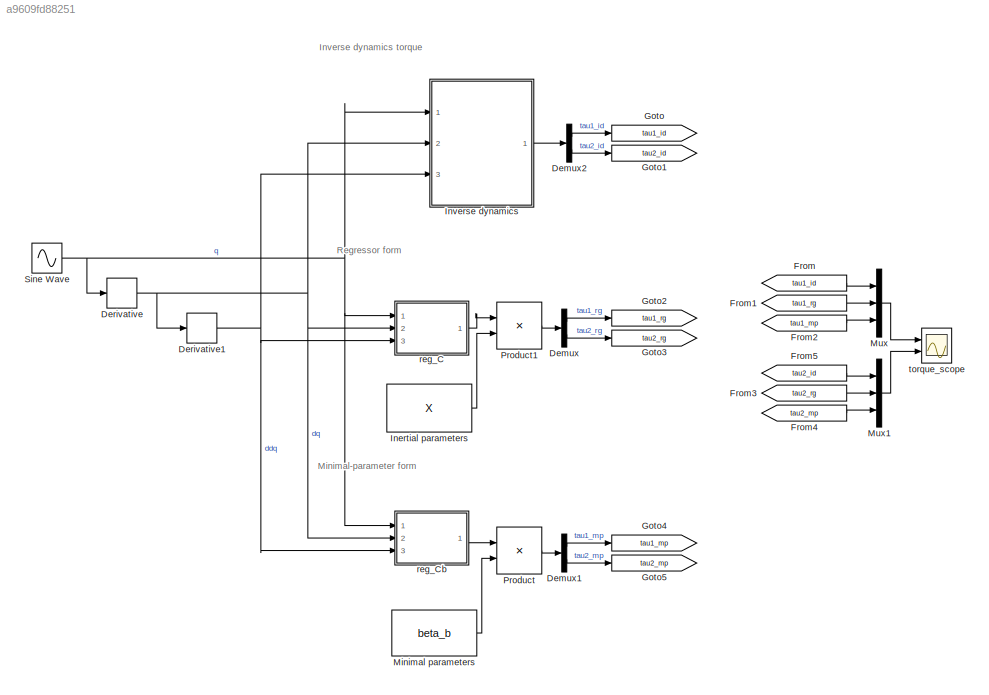
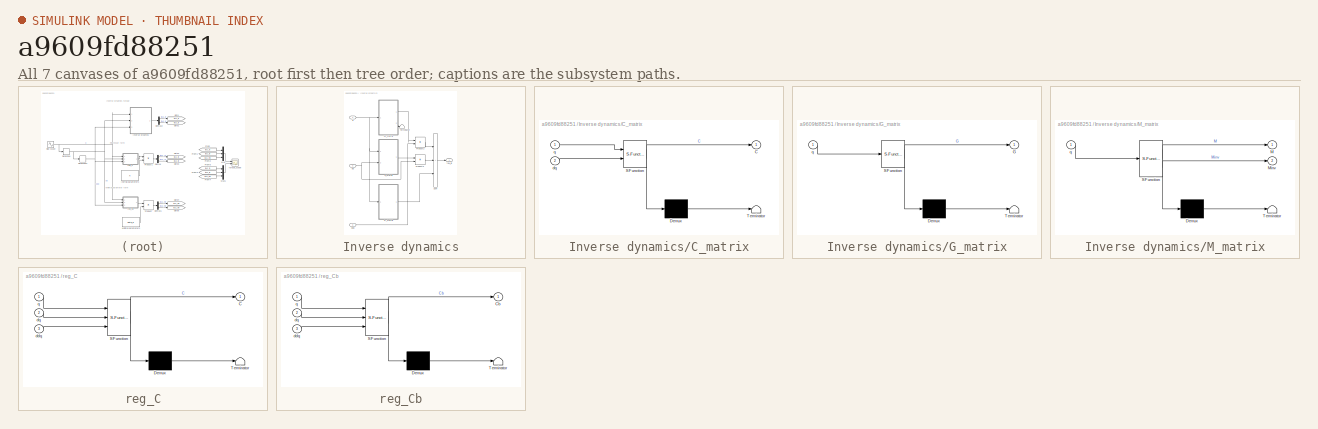
[diagram: thumbnail index - all 7 canvases of the model, root first then tree order]
MODEL slx_a9609fd88251
KIND model
CONFIG AbsTol = auto
CONFIG EnableMultiTasking = off
CONFIG FixedStep = 1E-3
CONFIG MaxStep = auto
CONFIG MinStep = auto
CONFIG RelTol = 1e-3
CONFIG SampleTimeConstraint = Unconstrained
CONFIG Solver = ode4
CONFIG SolverName = ode4
CONFIG StartTime = 0.0
CONFIG StopTime = 10.0
BLOCK [Demux] Demux
  Outputs = 2
  Ports = [1, 2]
BLOCK [Demux] Demux1
  Outputs = 2
  Ports = [1, 2]
BLOCK [Demux] Demux2
  Outputs = 2
  Ports = [1, 2]
BLOCK [Derivative] Derivative
BLOCK [Derivative] Derivative1
BLOCK [From] From
  GotoTag = tau1_id
BLOCK [From] From1
  GotoTag = tau1_rg
BLOCK [From] From2
  GotoTag = tau1_mp
BLOCK [From] From3
  GotoTag = tau2_rg
BLOCK [From] From4
  GotoTag = tau2_mp
BLOCK [From] From5
  GotoTag = tau2_id
BLOCK [Goto] Goto
  GotoTag = tau1_id
BLOCK [Goto] Goto1
  GotoTag = tau2_id
BLOCK [Goto] Goto2
  GotoTag = tau1_rg
BLOCK [Goto] Goto3
  GotoTag = tau2_rg
BLOCK [Goto] Goto4
  GotoTag = tau1_mp
BLOCK [Goto] Goto5
  GotoTag = tau2_mp
BLOCK [Constant] Inertial parameters
  Value = X
BLOCK [SubSystem] Inverse dynamics
  Ports = [3, 1]
  RequestExecContextInheritance = off
BLOCK [SubSystem] Inverse dynamics/C_matrix
  ErrorFcn = Stateflow.Translate.translate
  PermitHierarchicalResolution = ExplicitOnly
  Ports = [2, 1]
  RequestExecContextInheritance = off
  SFBlockType = MATLAB Function
  TreatAsAtomicUnit = on
BLOCK [Demux] Inverse dynamics/C_matrix/ Demux 
  Outputs = 1
  Ports = [1, 1]
BLOCK [S-Function] Inverse dynamics/C_matrix/ SFunction 
  EnableBusSupport = on
  FunctionName = sf_sfun
  Parameters = l1,lc2,m2
  PortCounts = [2 2]
  Ports = [2, 2]
  SFcnIsStateOwnerBlock = off
  SFunctionDeploymentMode = off
  Tag = Stateflow S-Function 3
BLOCK [Terminator] Inverse dynamics/C_matrix/ Terminator 
BLOCK [Outport] Inverse dynamics/C_matrix/C
  VectorParamsAs1DForOutWhenUnconnected = off
BLOCK [Inport] Inverse dynamics/C_matrix/dq
  Port = 2
BLOCK [Inport] Inverse dynamics/C_matrix/q
BLOCK [SubSystem] Inverse dynamics/G_matrix
  ErrorFcn = Stateflow.Translate.translate
  PermitHierarchicalResolution = ExplicitOnly
  Ports = [1, 1]
  RequestExecContextInheritance = off
  SFBlockType = MATLAB Function
  TreatAsAtomicUnit = on
BLOCK [Demux] Inverse dynamics/G_matrix/ Demux 
  Outputs = 1
  Ports = [1, 1]
BLOCK [S-Function] Inverse dynamics/G_matrix/ SFunction 
  EnableBusSupport = on
  FunctionName = sf_sfun
  Parameters = g,l1,lc1,lc2,m1,m2
  PortCounts = [1 2]
  Ports = [1, 2]
  SFcnIsStateOwnerBlock = off
  SFunctionDeploymentMode = off
  Tag = Stateflow S-Function 8
BLOCK [Terminator] Inverse dynamics/G_matrix/ Terminator 
BLOCK [Outport] Inverse dynamics/G_matrix/G
  VectorParamsAs1DForOutWhenUnconnected = off
BLOCK [Inport] Inverse dynamics/G_matrix/q
BLOCK [SubSystem] Inverse dynamics/M_matrix
  ErrorFcn = Stateflow.Translate.translate
  PermitHierarchicalResolution = ExplicitOnly
  Ports = [1, 2]
  RequestExecContextInheritance = off
  SFBlockType = MATLAB Function
  TreatAsAtomicUnit = on
BLOCK [Demux] Inverse dynamics/M_matrix/ Demux 
  Outputs = 1
  Ports = [1, 1]
BLOCK [S-Function] Inverse dynamics/M_matrix/ SFunction 
  EnableBusSupport = on
  FunctionName = sf_sfun
  Parameters = I1zz,I2zz,l1,lc1,lc2,m1,m2
  PortCounts = [1 3]
  Ports = [1, 3]
  SFcnIsStateOwnerBlock = off
  SFunctionDeploymentMode = off
  Tag = Stateflow S-Function 5
BLOCK [Terminator] Inverse dynamics/M_matrix/ Terminator 
BLOCK [Outport] Inverse dynamics/M_matrix/M
  VectorParamsAs1DForOutWhenUnconnected = off
BLOCK [Outport] Inverse dynamics/M_matrix/Minv
  Port = 2
  VectorParamsAs1DForOutWhenUnconnected = off
BLOCK [Inport] Inverse dynamics/M_matrix/q
BLOCK [Product] Inverse dynamics/Product2
  Multiplication = Matrix(*)
  Ports = [2, 1]
BLOCK [Product] Inverse dynamics/Product3
  Multiplication = Matrix(*)
  Ports = [2, 1]
BLOCK [Sum] Inverse dynamics/Sum
  IconShape = rectangular
  Inputs = +++
  Ports = [3, 1]
BLOCK [Terminator] Inverse dynamics/Terminator
BLOCK [Inport] Inverse dynamics/ddq
  Port = 3
BLOCK [Inport] Inverse dynamics/dq
  Port = 2
BLOCK [Inport] Inverse dynamics/q
BLOCK [Outport] Inverse dynamics/tau_id
BLOCK [Constant] Minimal parameters
  Value = beta_b
BLOCK [Mux] Mux
  DisplayOption = bar
  Inputs = 3
  Ports = [3, 1]
BLOCK [Mux] Mux1
  DisplayOption = bar
  Inputs = 3
  Ports = [3, 1]
BLOCK [Product] Product
  Multiplication = Matrix(*)
  Ports = [2, 1]
BLOCK [Product] Product1
  Multiplication = Matrix(*)
  Ports = [2, 1]
BLOCK [Sin] Sine Wave
  Amplitude = [1 1]
  Frequency = 2*pi*(1/2)
  Ports = [0, 1]
  SampleTime = 0
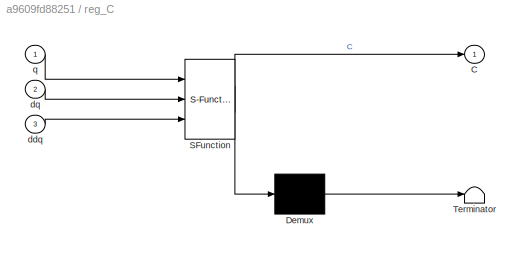
BLOCK [SubSystem] reg_C
  ErrorFcn = Stateflow.Translate.translate
  PermitHierarchicalResolution = ExplicitOnly
  Ports = [3, 1]
  RequestExecContextInheritance = off
  SFBlockType = MATLAB Function
  TreatAsAtomicUnit = on
BLOCK [Demux] reg_C/ Demux 
  Outputs = 1
  Ports = [1, 1]
BLOCK [S-Function] reg_C/ SFunction 
  EnableBusSupport = on
  FunctionName = sf_sfun
  PortCounts = [3 2]
  Ports = [3, 2]
  SFcnIsStateOwnerBlock = off
  SFunctionDeploymentMode = off
  Tag = Stateflow S-Function 6
BLOCK [Terminator] reg_C/ Terminator 
BLOCK [Outport] reg_C/C
BLOCK [Inport] reg_C/ddq
  Port = 3
BLOCK [Inport] reg_C/dq
  Port = 2
BLOCK [Inport] reg_C/q
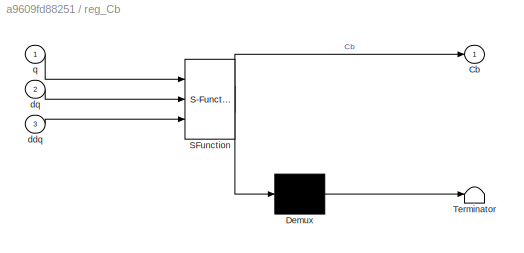
BLOCK [SubSystem] reg_Cb
  ErrorFcn = Stateflow.Translate.translate
  PermitHierarchicalResolution = ExplicitOnly
  Ports = [3, 1]
  RequestExecContextInheritance = off
  SFBlockType = MATLAB Function
  TreatAsAtomicUnit = on
BLOCK [Demux] reg_Cb/ Demux 
  Outputs = 1
  Ports = [1, 1]
BLOCK [S-Function] reg_Cb/ SFunction 
  EnableBusSupport = on
  FunctionName = sf_sfun
  PortCounts = [3 2]
  Ports = [3, 2]
  SFcnIsStateOwnerBlock = off
  SFunctionDeploymentMode = off
  Tag = Stateflow S-Function 1
BLOCK [Terminator] reg_Cb/ Terminator 
BLOCK [Outport] reg_Cb/Cb
BLOCK [Inport] reg_Cb/ddq
  Port = 3
BLOCK [Inport] reg_Cb/dq
  Port = 2
BLOCK [Inport] reg_Cb/q
BLOCK [Scope] torque_scope
  Floating = off
  NumInputPorts = 2
  Ports = [2]
  ScopeSpecificationString = Simulink.scopes.TimeScopeBlockCfg('CurrentConfiguration', extmgr.ConfigurationSet(extmgr.Configuration('Core','General UI',true,'FigureColor',[0 0 0]),extmgr.Configuration('Core','Source UI',true),extmgr.Configuration('Sources','WiredSimulink',true,'DataLoggingVariableName','ScopeData2'),extmgr.Configuration('Visuals','Time Domain',true,'SerializedDisplays',{struct('MinYLimReal','-294.34856','MaxY...<+2900ch>
ANNOTATION (root): Inverse dynamics torque
ANNOTATION (root): Minimal-parameter form
ANNOTATION (root): Regressor form
LINE Demux1:1 -> Goto4:1
LINE Demux1:2 -> Goto5:1
LINE Demux2:1 -> Goto:1
LINE Demux2:2 -> Goto1:1
LINE Demux:1 -> Goto2:1
LINE Demux:2 -> Goto3:1
NET Derivative1:1 -> Inverse dynamics:3, reg_C:3, reg_Cb:3
NET Derivative:1 -> Derivative1:1, Inverse dynamics:2, reg_C:2, reg_Cb:2
LINE From1:1 -> Mux:2
LINE From2:1 -> Mux:3
LINE From3:1 -> Mux1:2
LINE From4:1 -> Mux1:3
LINE From5:1 -> Mux1:1
LINE From:1 -> Mux:1
LINE Inertial parameters:1 -> Product1:2
LINE Inverse dynamics/C_matrix:1 -> Inverse dynamics/Product3:1
LINE Inverse dynamics/G_matrix:1 -> Inverse dynamics/Sum:3
LINE Inverse dynamics/M_matrix:1 -> Inverse dynamics/Product2:1
LINE Inverse dynamics/M_matrix:2 -> Inverse dynamics/Terminator:1
LINE Inverse dynamics/Product2:1 -> Inverse dynamics/Sum:1
LINE Inverse dynamics/Product3:1 -> Inverse dynamics/Sum:2
LINE Inverse dynamics/Sum:1 -> Inverse dynamics/tau_id:1
LINE Inverse dynamics/ddq:1 -> Inverse dynamics/Product2:2
NET Inverse dynamics/dq:1 -> Inverse dynamics/C_matrix:2, Inverse dynamics/Product3:2
NET Inverse dynamics/q:1 -> Inverse dynamics/C_matrix:1, Inverse dynamics/G_matrix:1, Inverse dynamics/M_matrix:1
LINE Inverse dynamics:1 -> Demux2:1
LINE Minimal parameters:1 -> Product:2
LINE Mux1:1 -> torque_scope:2
LINE Mux:1 -> torque_scope:1
LINE Product1:1 -> Demux:1
LINE Product:1 -> Demux1:1
NET Sine Wave:1 -> Derivative:1, Inverse dynamics:1, reg_C:1, reg_Cb:1
LINE reg_C:1 -> Product1:1
LINE reg_Cb:1 -> Product:1
note: NET lines group one-source signal fan-out (src -> all destinations, sorted); 1:1 wires keep LINE
CHART reg_Cb states=1 transitions=1
  STATE_LABEL 'eML_blk_kernel()'
  STATE_LABEL 'SCRIPT:\nfunction Cb = reg_Cb(q,dq,ddq)\n%#codegen\n\n%    This function was generated by the Symbolic Math Toolbox version 8.5.\n%    15-Nov-2022 11:13:43\nddq1 = ddq(1);\nddq2 = ddq(2);\ndq1  = dq(1);\ndq2  = dq(2);\nq1   = q(1);\nq2   = q(2);\n\nt2 = cos(q2);\nt3 = sin(q2);\nt4 = ddq1+ddq2;\nt5 = dq1+dq2;\nt6 = q1+q2;\nt7 = ddq1.*t2;\nt8 = cos(t6);\nt9 = ddq1.*t3;\nt10 = sin(t6);\nt11 = dq1.*dq2.*t3;\nt12 = dq1.*dq2....<+320ch>'
CHART Inverse dynamics/C_matrix states=1 transitions=1
  STATE_LABEL 'eML_blk_kernel()'
  STATE_LABEL 'SCRIPT:\nfunction C = C_matrix(q,dq, l1, lc2, m2)\n%#codegen\n\n%    This function was generated by the Symbolic Math Toolbox version 8.3.\n%    05-Nov-2019 15:18:30\n\ndq1  = dq(1);\ndq2  = dq(2);\nq1   = q(1);\nq2   = q(2);\n\nt2 = sin(q2);\nC = reshape([-dq2.*l1.*lc2.*m2.*t2,dq1.*l1.*lc2.*m2.*t2,-l1.*lc2.*m2.*t2.*(dq1+dq2),0.0],[2,2]);\n'
CHART Inverse dynamics/M_matrix states=1 transitions=1
  STATE_LABEL 'eML_blk_kernel()'
  STATE_LABEL 'SCRIPT:\nfunction [M, Minv] = M_matrix(q, I1zz, I2zz, l1, lc1, lc2, m1, m2)\n%#codegen\n\n%    This function was generated by the Symbolic Math Toolbox version 8.3.\n%    05-Nov-2019 15:18:29\n\nq1   = q(1);\nq2   = q(2);\n\nt2 = cos(q2);\nt3 = lc2.^2;\nt4 = m2.*t3;\nt5 = l1.*lc2.*m2.*t2;\nt6 = I2zz+t4+t5;\nM = reshape([I1zz+t5+t6+l1.^2.*m2+lc1.^2.*m1,t6,t6,I2zz+t4],[2,2]);\nMinv = pinv(M);'
CHART reg_C states=1 transitions=1
  STATE_LABEL 'eML_blk_kernel()'
  STATE_LABEL 'SCRIPT:\nfunction C = reg_C(q,dq,ddq)\n%#codegen\n\n%    This function was generated by the Symbolic Math Toolbox version 8.5.\n%    15-Nov-2022 11:13:43\nddq1 = ddq(1);\nddq2 = ddq(2);\ndq1  = dq(1);\ndq2  = dq(2);\nq1   = q(1);\nq2   = q(2);\n\nt2 = cos(q1);\nt3 = cos(q2);\nt4 = sin(q2);\nt5 = ddq1+ddq2;\nt6 = dq1+dq2;\nt7 = q1+q2;\nt8 = ddq1.*t3;\nt9 = cos(t7);\nt10 = ddq1.*t4;\nt11 = sin(t7);\nt12 = dq1.*dq2.*t4;\nt1...<+457ch>'
CHART Inverse dynamics/G_matrix states=1 transitions=1
  STATE_LABEL 'eML_blk_kernel()'
  STATE_LABEL 'SCRIPT:\nfunction G = G_matrix(q, g, l1, lc1, lc2, m1, m2)\n%#codegen\n\n%    This function was generated by the Symbolic Math Toolbox version 8.3.\n%    05-Nov-2019 15:18:30\n\nq1   = q(1);\nq2   = q(2);\n\nt2 = cos(q1);\nt3 = q1+q2;\nt4 = cos(t3);\nG = [g.*m2.*(l1.*t2+lc2.*t4)+g.*lc1.*m1.*t2;g.*lc2.*m2.*t4];\n'
CHART  states=0 transitions=0
CHART  states=0 transitions=0
CHART  states=0 transitions=0
CHART  states=0 transitions=0
CHART  states=0 transitions=0
